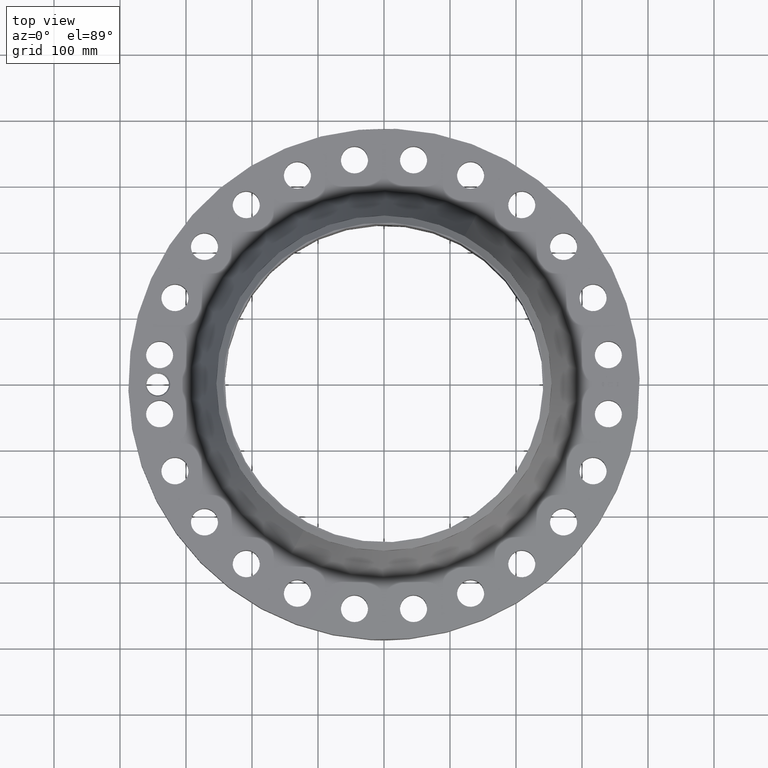
[diagram: clean part render]
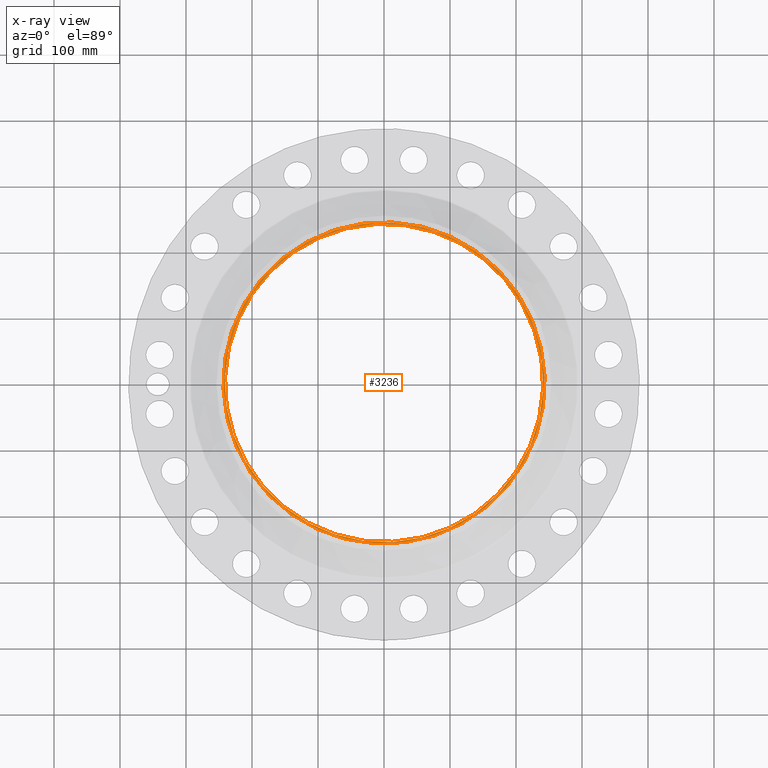
[diagram: x-ray — body ghosted, one internal face saturated and labeled with its STEP entity id]
A machine part, top view, then the same camera in x-ray: the body is ghosted and one INTERNAL B-rep face — a face not visible from any outside direction — is saturated and labeled: STEP entity #3236.
In plain terms, the highlighted planar face has unit normal (0, 0, -1).
Its self-contained STEP definition (entity closure, byte-faithful):
#1709=AXIS2_PLACEMENT_3D('Circle Axis2P3D',#1707,#1708,$) ;
#1777=AXIS2_PLACEMENT_3D('Circle Axis2P3D',#1775,#1776,$) ;
#3212=AXIS2_PLACEMENT_3D('Plane Axis2P3D',#3209,#3210,#3211) ;
#3216=AXIS2_PLACEMENT_3D('Circle Axis2P3D',#3214,#3215,$) ;
#3225=AXIS2_PLACEMENT_3D('Circle Axis2P3D',#3223,#3224,$) ;
#1707=CARTESIAN_POINT('Axis2P3D Location',(0.,0.,6.87000000003)) ;
#1711=CARTESIAN_POINT('Vertex',(4.55454261676,8.33703433799,6.87000000003)) ;
#1713=CARTESIAN_POINT('Vertex',(-4.55454261676,-8.33703433799,6.87000000003)) ;
#1775=CARTESIAN_POINT('Axis2P3D Location',(0.,0.,6.87000000003)) ;
#3209=CARTESIAN_POINT('Axis2P3D Location',(0.,10.,6.87000000003)) ;
#3214=CARTESIAN_POINT('Axis2P3D Location',(0.,0.,6.87000000003)) ;
#3218=CARTESIAN_POINT('Vertex',(4.59229265917,-8.40613532712,6.87000000003)) ;
#3220=CARTESIAN_POINT('Vertex',(-4.59229265917,8.40613532712,6.87000000003)) ;
#3223=CARTESIAN_POINT('Axis2P3D Location',(0.,0.,6.87000000003)) ;
#1708=DIRECTION('Axis2P3D Direction',(0.,0.,-0.0393700787402)) ;
#1776=DIRECTION('Axis2P3D Direction',(0.,0.,-0.0393700787402)) ;
#3210=DIRECTION('Axis2P3D Direction',(0.,0.,-0.0393700787402)) ;
#3211=DIRECTION('Axis2P3D XDirection',(0.0393700787402,0.,0.)) ;
#3215=DIRECTION('Axis2P3D Direction',(0.,0.,-0.0393700787402)) ;
#3224=DIRECTION('Axis2P3D Direction',(0.,0.,-0.0393700787402)) ;
#3229=ORIENTED_EDGE('',*,*,#3222,.T.) ;
#3230=ORIENTED_EDGE('',*,*,#3227,.T.) ;
#3233=ORIENTED_EDGE('',*,*,#1779,.T.) ;
#3234=ORIENTED_EDGE('',*,*,#1715,.T.) ;
#3235=FACE_BOUND('',#3232,.T.) ;
#3236=ADVANCED_FACE('PartBody',(#3231,#3235),#3213,.F.) ;
#1710=CIRCLE('generated circle',#1709,9.50000000004) ;
#1778=CIRCLE('generated circle',#1777,9.50000000004) ;
#3217=CIRCLE('generated circle',#3216,9.57874015752) ;
#3226=CIRCLE('generated circle',#3225,9.57874015752) ;
#1715=EDGE_CURVE('',#1712,#1714,#1710,.T.) ;
#1779=EDGE_CURVE('',#1714,#1712,#1778,.T.) ;
#3222=EDGE_CURVE('',#3219,#3221,#3217,.F.) ;
#3227=EDGE_CURVE('',#3221,#3219,#3226,.F.) ;
#3228=EDGE_LOOP('',(#3229,#3230)) ;
#3232=EDGE_LOOP('',(#3233,#3234)) ;
#3231=FACE_OUTER_BOUND('',#3228,.T.) ;
#3213=PLANE('',#3212) ;
#1712=VERTEX_POINT('',#1711) ;
#1714=VERTEX_POINT('',#1713) ;
#3219=VERTEX_POINT('',#3218) ;
#3221=VERTEX_POINT('',#3220) ;